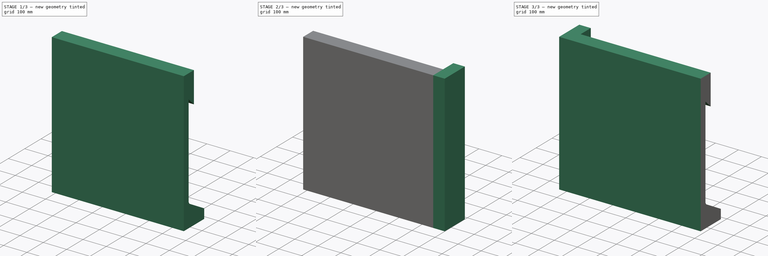
[diagram: build sequence overview — one tinted view per stage of 3, left to right]
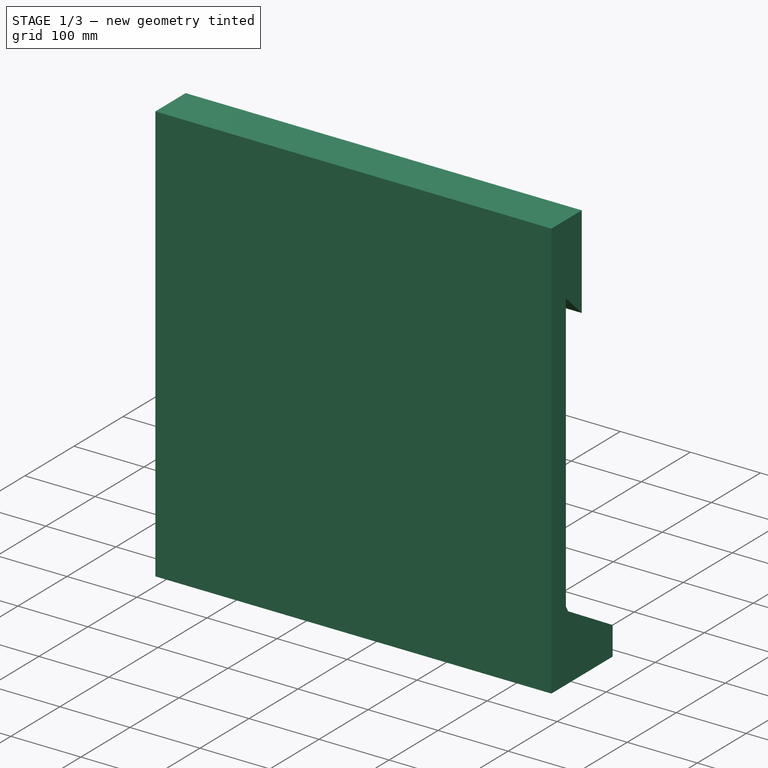
[diagram: stage 1 of 3 — iso view after this stage's code; geometry added in this stage tinted green]
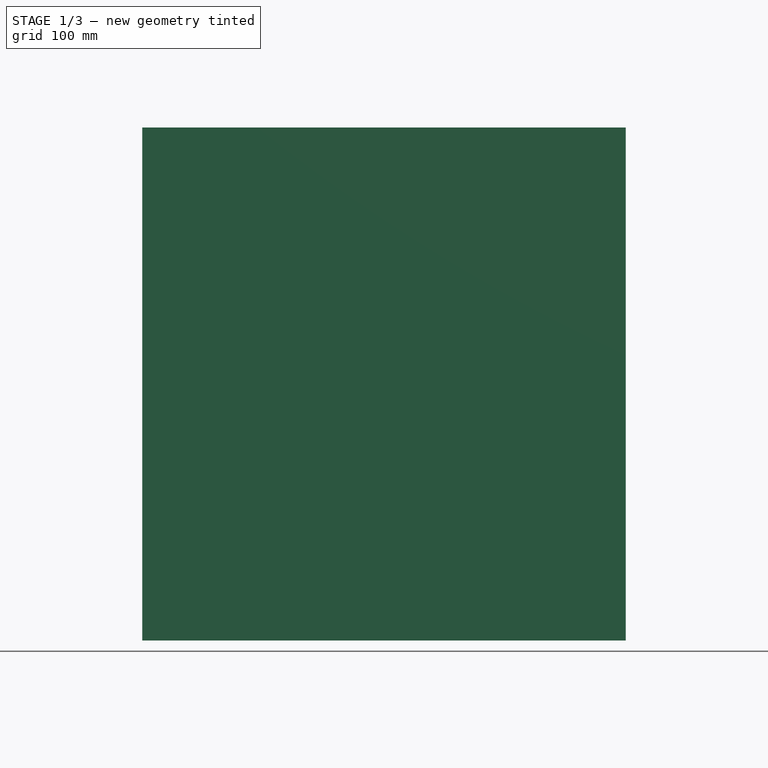
[diagram: stage 1 of 3 — front view after this stage's code; geometry added in this stage tinted green]
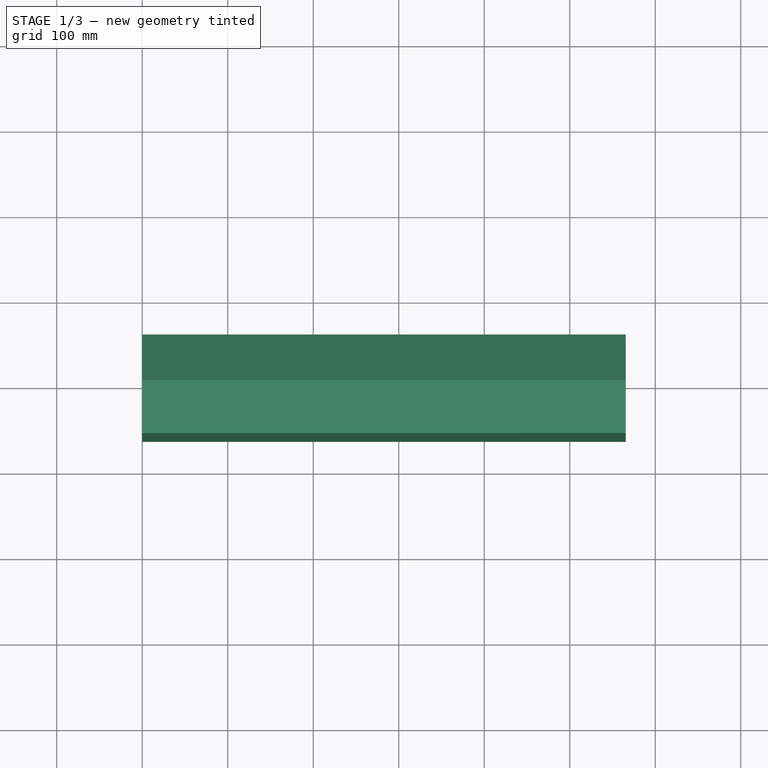
[diagram: stage 1 of 3 — top view after this stage's code; geometry added in this stage tinted green]
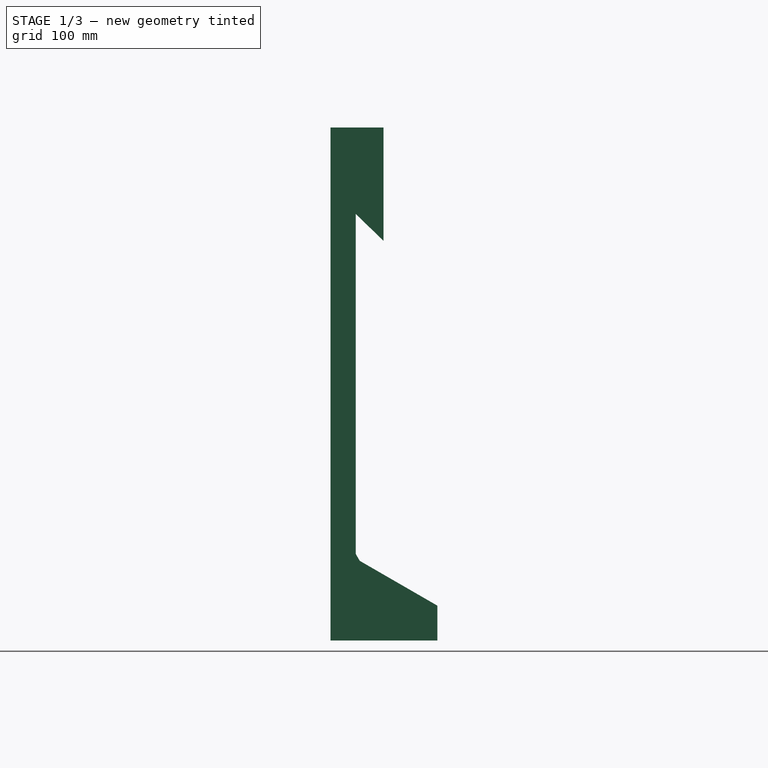
[diagram: stage 1 of 3 — right view after this stage's code; geometry added in this stage tinted green]
FCSTD DOCUMENT  (FreeCAD 0.16R6706 (Git))
Label: bobcat-QA-mounting-plate
License: All rights reserved
LicenseURL: http://en.wikipedia.org/wiki/All_rights_reserved
objects: Sketcher::SketchObject×5, PartDesign::Pad×3, PartDesign::Pocket×2, Part::Mirroring×1
note: 16 computed .brp shape members not serialized (recipe doc carries the construction recipe); baked Part::Feature solids carry a one-line shape summary decoded from their .brp

FEATURE [Sketcher::SketchObject] Sketch
  Placement = pos=(0,0,0) rot=(0.57735,0.57735,0.57735;2.0944rad)
  sketch-geometry (6):
    g0: LineSegment StartX=-62.5 StartY=300 StartZ=0 EndX=62.5 EndY=300 EndZ=0
    g1: LineSegment StartX=62.5 StartY=300 StartZ=0 EndX=62.5 EndY=-300 EndZ=0
    g2: LineSegment StartX=62.5 StartY=-300 StartZ=0 EndX=-62.5 EndY=-300 EndZ=0
    g3: LineSegment StartX=-62.5 StartY=-300 StartZ=0 EndX=-62.5 EndY=300 EndZ=0
    g4: LineSegment [constr] StartX=-62.5 StartY=300 StartZ=0 EndX=62.5 EndY=-300 EndZ=0
    g5: LineSegment [constr] StartX=62.5 StartY=300 StartZ=0 EndX=-62.5 EndY=-300 EndZ=0
  constraints (16):
    c: Coincident(g0,g1)
    c: Coincident(g1,g2)
    c: Coincident(g2,g3)
    c: Coincident(g3,g0)
    c: Horizontal(g0)
    c: Horizontal(g2)
    c: Vertical(g1)
    c: Vertical(g3)
    c: Coincident(g4,g0)
    c: Coincident(g4,g1)
    c: Coincident(g5,g0)
    c: Coincident(g5,g2)
    c: PointOnObject(g-1,g4)
    c: PointOnObject(g-1,g5)
    c: DistanceX(g0,g0) = 125
    c: DistanceY(g3,g3) = 600
FEATURE [PartDesign::Pad] Pad
  Length = 565.5
  Length2 = 100
  Placement = pos=(0,0,0) rot=(0.57735,0.57735,0.57735;2.0944rad)
  Sketch = -> Sketch
  Type = 0
FEATURE [Sketcher::SketchObject] Sketch001
  ExternalGeometry = -> [Pad]
  Placement = pos=(565.5,0,0) rot=(0.57735,0.57735,0.57735;2.0944rad)
  Support = -> Pad [Face6]
  sketch-geometry (11):
    g0: LineSegment StartX=-33 StartY=198.807 StartZ=0 EndX=-33 EndY=-198.807 EndZ=0
    g1: LineSegment StartX=62.5 StartY=-259.277 StartZ=0 EndX=62.5 EndY=300 EndZ=0
    g2: LineSegment StartX=62.5 StartY=300 StartZ=0 EndX=-0.629709 EndY=300 EndZ=0
    g3: LineSegment StartX=-0.629709 StartY=300 StartZ=0 EndX=-0.629709 EndY=167.547 EndZ=0
    g4: LineSegment StartX=-33 StartY=198.807 StartZ=0 EndX=-0.629709 EndY=167.547 EndZ=0
    g5: LineSegment StartX=-33 StartY=-198.807 StartZ=0 EndX=-28.3812 EndY=-206.807 EndZ=0
    g6: LineSegment StartX=-28.3812 StartY=-206.807 StartZ=0 EndX=62.5 EndY=-259.277 EndZ=0
    g7: LineSegment [constr] StartX=-33 StartY=-198.807 StartZ=0 EndX=-33 EndY=-280.351 EndZ=0
    g8: LineSegment [constr] StartX=0 StartY=-223.193 StartZ=0 EndX=-33 EndY=-280.351 EndZ=0
    g9: LineSegment [constr] StartX=-28.3812 StartY=-206.807 StartZ=0 EndX=-35.3094 EndY=-202.807 EndZ=0
    g10: LineSegment [constr] StartX=-35.3094 StartY=-202.807 StartZ=0 EndX=-33 EndY=-198.807 EndZ=0
  constraints (32):
    c: Vertical(g0)
    c: Vertical(g1)
    c: Coincident(g2,g1)
    c: Horizontal(g2)
    c: Coincident(g3,g2)
    c: Vertical(g3)
    c: Coincident(g4,g0)
    c: Symmetric(g0,g0,g-1)
    c: Angle(g0,g4) = 0.802851
    c: Distance(g4) = 45
    c: Coincident(g3,g4)
    c: Coincident(g5,g0)
    c: Coincident(g6,g5)
    c: Coincident(g7,g0)
    c: Vertical(g7)
    c: PointOnObject(g8,g6)
    c: Coincident(g8,g7)
    c: Perpendicular(g8,g6)
    c: Coincident(g9,g5)
    c: Coincident(g10,g9)
    c: Coincident(g0,g10)
    c: Parallel(g6,g9)
    c: Perpendicular(g9,g10)
    c: Distance(g9) = 8
    c: DistanceY(g5,g0) = 8
    c: Coincident(g1,g6)
    c: Angle(g7,g6) = 1.0472
    c: PointOnObject(g8,g-2)
    c: DistanceY(g8,g0) = 422
    c: DistanceX(g7,g8) = 33
    c: PointOnObject(g2,g-3)
    c: PointOnObject(g1,g-4)
FEATURE [PartDesign::Pocket] Pocket
  Length = 0
  Placement = pos=(0,0,0) rot=(0.57735,0.57735,0.57735;2.0944rad)
  Sketch = -> Sketch001
  Type = 3
  UpToFace = -> Pad [Face5]
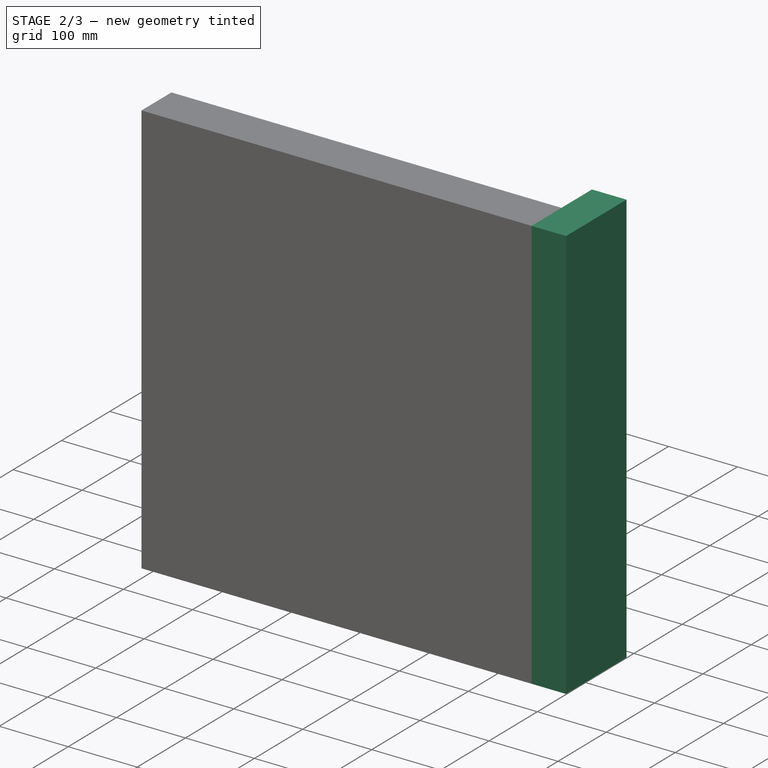
[diagram: stage 2 of 3 — iso view after this stage's code; geometry added in this stage tinted green]
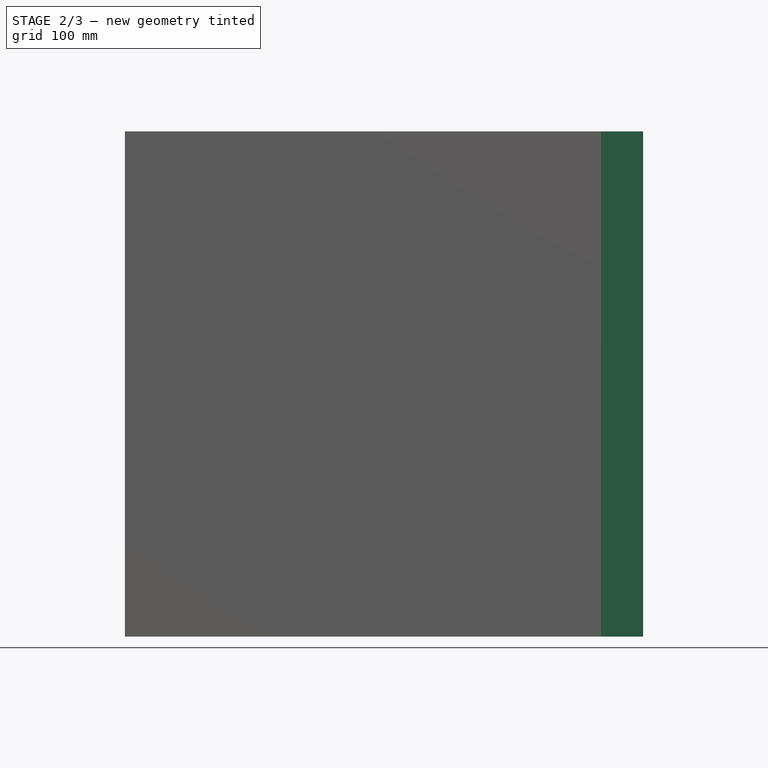
[diagram: stage 2 of 3 — front view after this stage's code; geometry added in this stage tinted green]
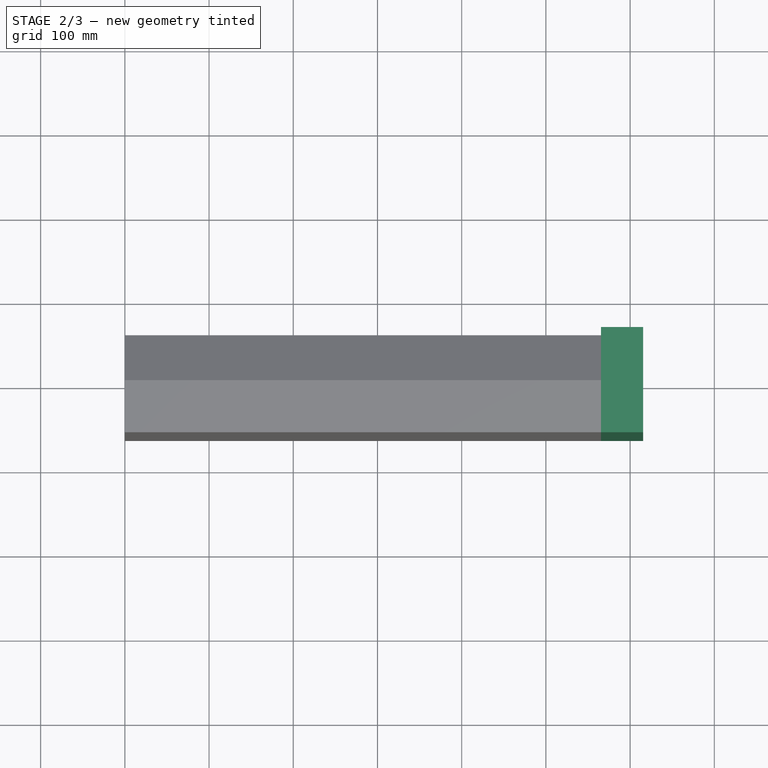
[diagram: stage 2 of 3 — top view after this stage's code; geometry added in this stage tinted green]
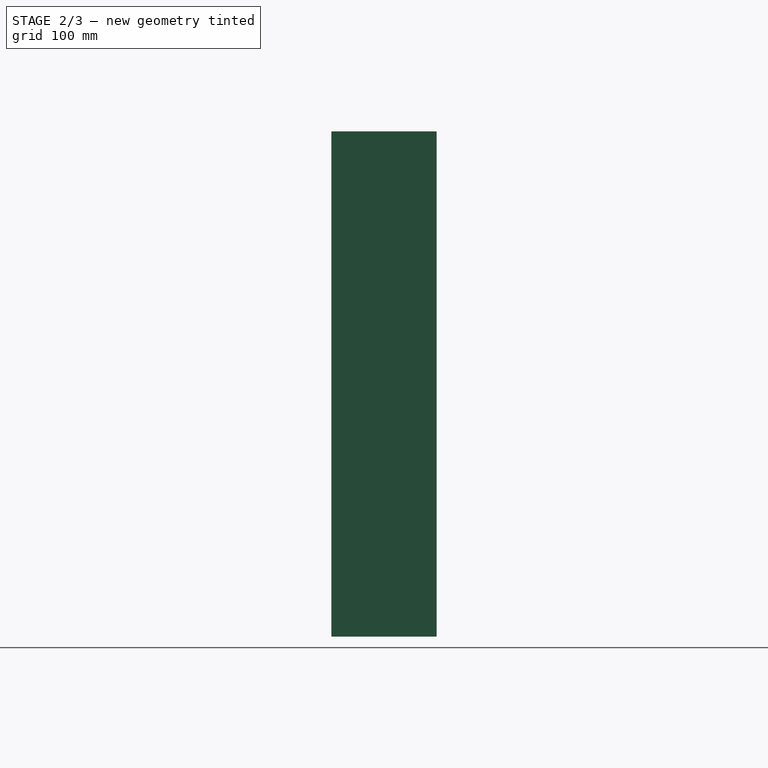
[diagram: stage 2 of 3 — right view after this stage's code; geometry added in this stage tinted green]
FEATURE [Sketcher::SketchObject] Sketch002
  ExternalGeometry = -> [Pocket]
  Placement = pos=(565.5,0,0) rot=(0.57735,0.57735,0.57735;2.0944rad)
  Support = -> Pocket [Face4]
  sketch-geometry (4):
    g0: LineSegment StartX=-62.5 StartY=300 StartZ=0 EndX=62.5 EndY=300 EndZ=0
    g1: LineSegment StartX=62.5 StartY=300 StartZ=0 EndX=62.5 EndY=-300 EndZ=0
    g2: LineSegment StartX=62.5 StartY=-300 StartZ=0 EndX=-62.5 EndY=-300 EndZ=0
    g3: LineSegment StartX=-62.5 StartY=-300 StartZ=0 EndX=-62.5 EndY=300 EndZ=0
  constraints (10):
    c: Coincident(g0,g1)
    c: Coincident(g1,g2)
    c: Coincident(g2,g3)
    c: Coincident(g3,g0)
    c: Horizontal(g0)
    c: Horizontal(g2)
    c: Vertical(g1)
    c: Vertical(g3)
    c: Coincident(g0,g-3)
    c: Coincident(g1,g-4)
FEATURE [PartDesign::Pad] Pad001
  Length = 50
  Length2 = 100
  Placement = pos=(0,0,0) rot=(0.57735,0.57735,0.57735;2.0944rad)
  Sketch = -> Sketch002
  Type = 0
FEATURE [Sketcher::SketchObject] Sketch005
  Placement = pos=(0,0,-300) rot=(0.707107,0.707107,0;3.14159rad)
  Support = -> Pad001 [Face9]
  sketch-geometry (4):
    g0: LineSegment StartX=0 StartY=348 StartZ=0 EndX=-33 EndY=348 EndZ=0
    g1: LineSegment StartX=-33 StartY=348 StartZ=0 EndX=-33 EndY=451 EndZ=0
    g2: LineSegment StartX=-33 StartY=451 StartZ=0 EndX=0 EndY=451 EndZ=0
    g3: LineSegment StartX=0 StartY=451 StartZ=0 EndX=0 EndY=348 EndZ=0
  constraints (12):
    c: Coincident(g0,g1)
    c: Coincident(g1,g2)
    c: Coincident(g2,g3)
    c: Coincident(g3,g0)
    c: Horizontal(g0)
    c: Horizontal(g2)
    c: Vertical(g1)
    c: Vertical(g3)
    c: DistanceY(g3,g3) = 103
    c: PointOnObject(g-1,g3)
    c: DistanceY(g-1,g0) = 348
    c: DistanceX(g0,g0) = -33
FEATURE [PartDesign::Pocket] Pocket001
  Length = 5
  Placement = pos=(0,0,0) rot=(0.57735,0.57735,0.57735;2.0944rad)
  Sketch = -> Sketch005
  Type = 2
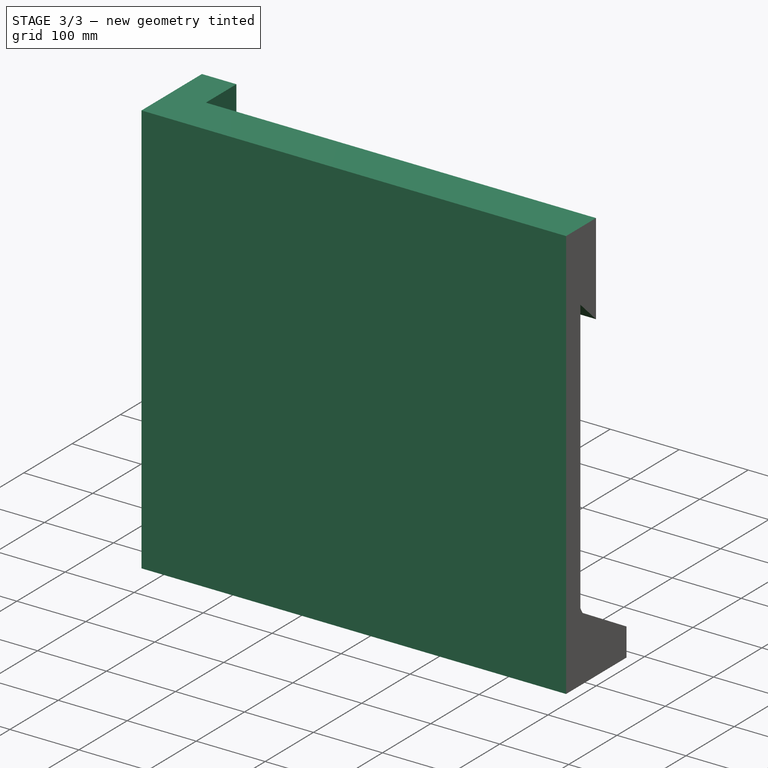
[diagram: stage 3 of 3 — iso view after this stage's code; geometry added in this stage tinted green]
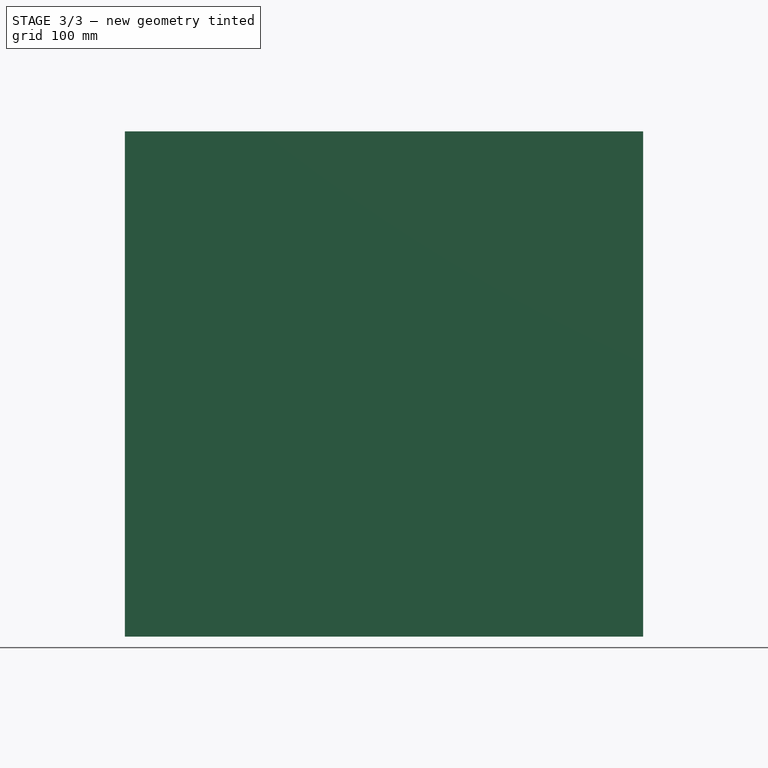
[diagram: stage 3 of 3 — front view after this stage's code; geometry added in this stage tinted green]
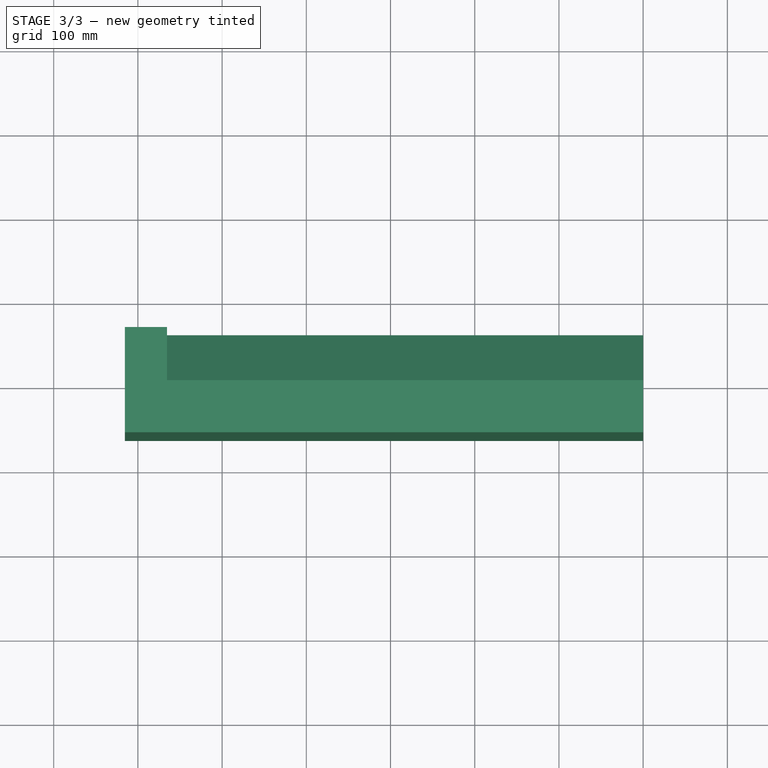
[diagram: stage 3 of 3 — top view after this stage's code; geometry added in this stage tinted green]
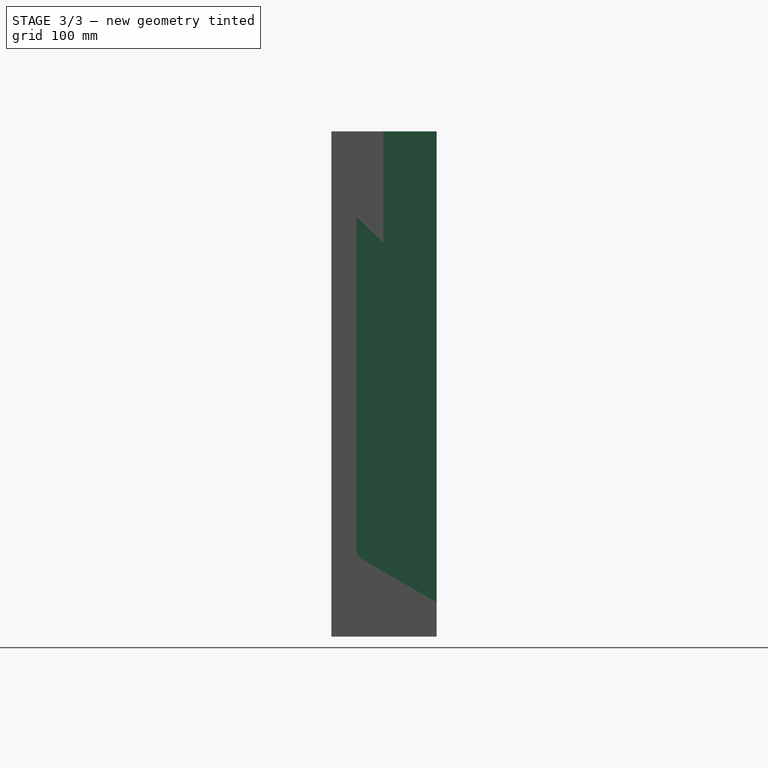
[diagram: stage 3 of 3 — right view after this stage's code; geometry added in this stage tinted green]
FEATURE [Sketcher::SketchObject] Sketch004
  ExternalGeometry = -> [Pad001]
  Placement = pos=(451,0,0) rot=(-0.57735,-0.57735,0.57735;2.0944rad)
  Support = -> Pocket001 [Face18]
  sketch-geometry (5):
    g0: LineSegment StartX=0 StartY=223.193 StartZ=0 EndX=-33 EndY=280.351 EndZ=0
    g1: LineSegment [constr] StartX=-33 StartY=280.351 StartZ=0 EndX=-33 EndY=0 EndZ=0
    g2: LineSegment StartX=-33 StartY=280.351 StartZ=0 EndX=-33 EndY=300 EndZ=0
    g3: LineSegment StartX=-33 StartY=300 StartZ=0 EndX=0 EndY=300 EndZ=0
    g4: LineSegment StartX=0 StartY=300 StartZ=0 EndX=0 EndY=223.193 EndZ=0
  constraints (15):
    c: PointOnObject(g0,g-3)
    c: Coincident(g1,g0)
    c: Vertical(g1)
    c: Angle(g1,g0) = 0.523599
    c: Vertical(g2)
    c: Horizontal(g3)
    c: Vertical(g4)
    c: Coincident(g4,g0)
    c: Coincident(g3,g4)
    c: Coincident(g2,g3)
    c: Coincident(g0,g2)
    c: PointOnObject(g2,g-7)
    c: PointOnObject(g0,g-2)
    c: PointOnObject(g1,g-5)
    c: PointOnObject(g1,g-1)
FEATURE [PartDesign::Pad] Pad002
  Length = 10
  Length2 = 100
  Placement = pos=(0,0,0) rot=(0.57735,0.57735,0.57735;2.0944rad)
  Sketch = -> Sketch004
  Type = 3
  UpToFace = -> Pocket001 [Face20]
FEATURE [Part::Mirroring] Part__Mirroring  label="Female End Bobcat Standard"
  Base = (0,0,0)
  Normal = (1,0,0)
  Source = -> Pad002
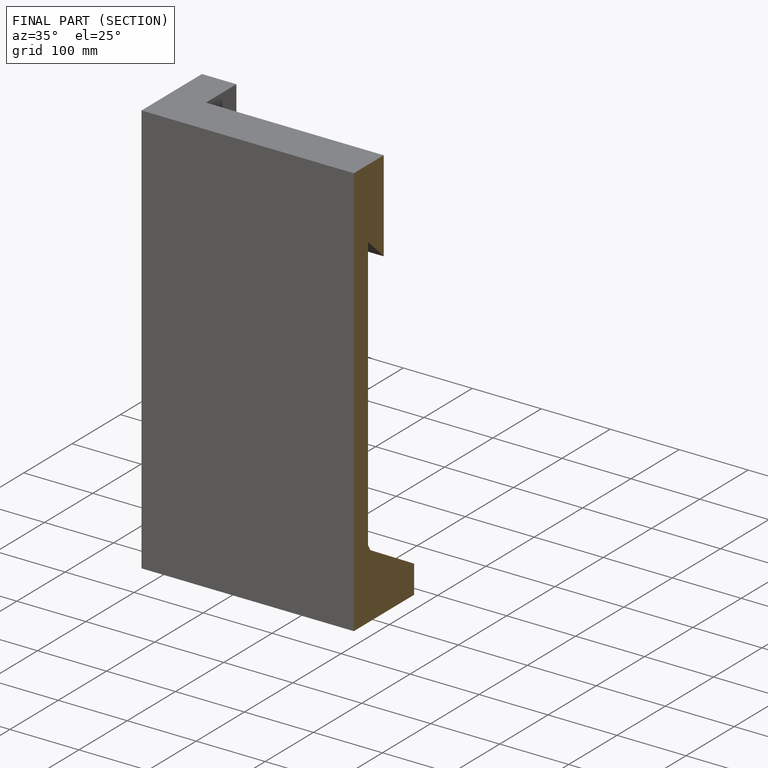
[diagram: finished part — half-section view (interior)]
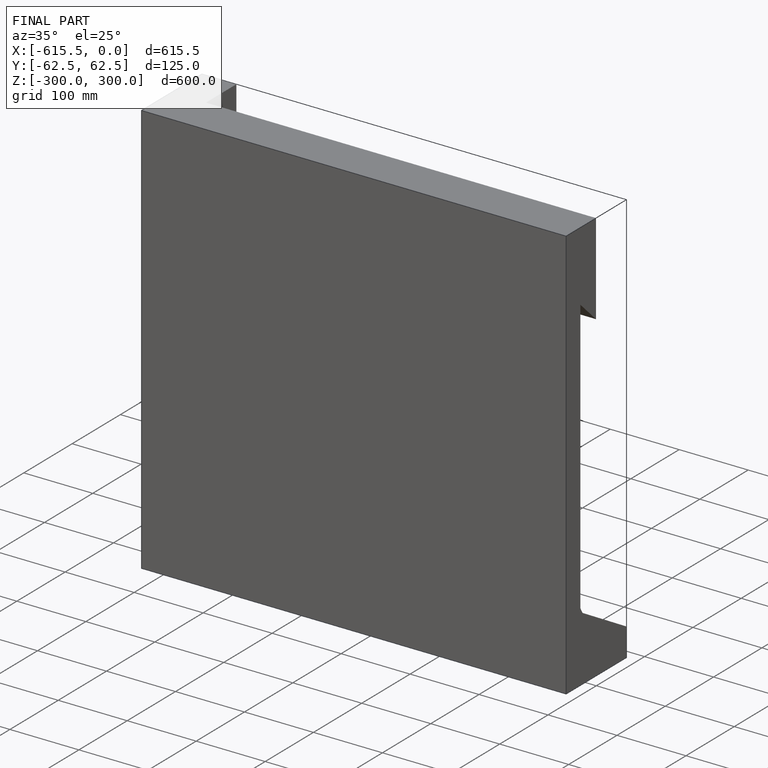
[diagram: finished part — iso view with bounding-box wireframe]
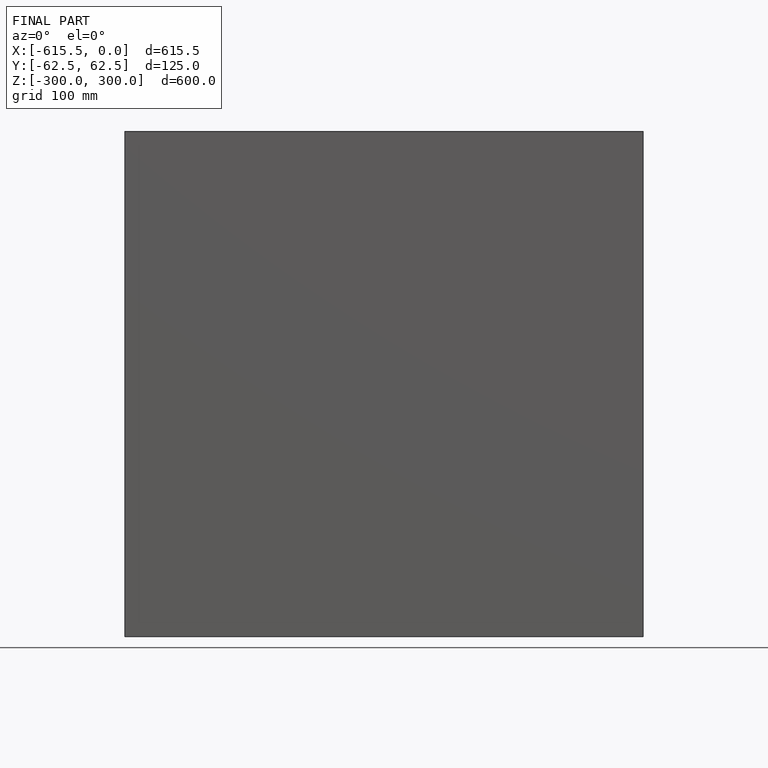
[diagram: finished part — front view with bounding-box wireframe]
